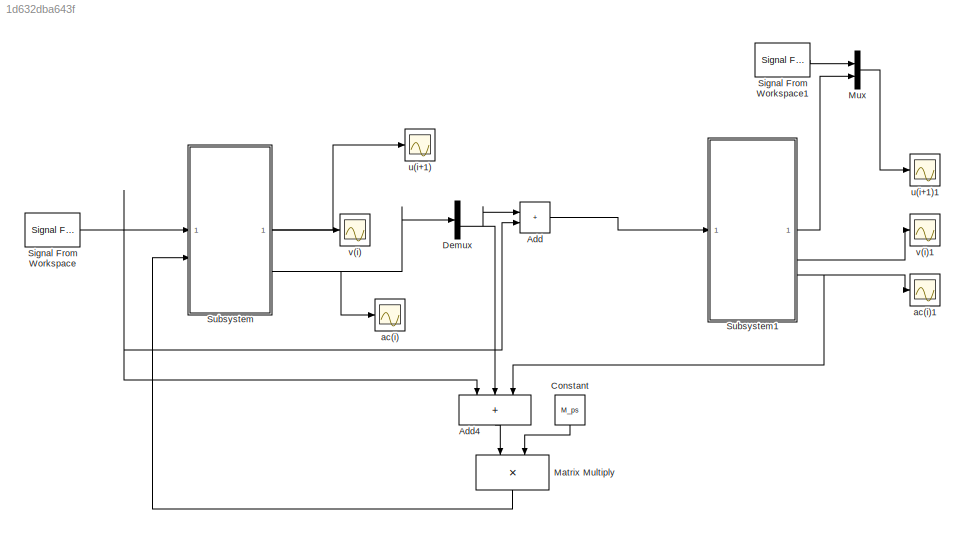
MODEL slx_1d632dba643f
KIND model
CONFIG AbsTol = auto
CONFIG EnableMultiTasking = off
CONFIG FixedStep = 0.001
CONFIG MaxStep = auto
CONFIG MinStep = auto
CONFIG RelTol = 1e-3
CONFIG SampleTimeConstraint = Unconstrained
CONFIG SolverName = FixedStepAuto
CONFIG StartTime = 0.0
CONFIG StopTime = 55.0
BLOCK [Sum] Add
  IconShape = rectangular
BLOCK [Sum] Add4
  IconShape = rectangular
  Inputs = +++
  NameLocation = left
BLOCK [Constant] Constant
  NameLocation = left
  Value = M_ps
BLOCK [Demux] Demux
  Outputs = 2
BLOCK [Product] Matrix Multiply
  Multiplication = Matrix(*)
  NameLocation = left
BLOCK [Mux] Mux
  DisplayOption = bar
  Inputs = 2
BLOCK [Reference] Signal From Workspace  REF=dspsrcs4/Signal From
Workspace
  SourceBlock = dspsrcs4/Signal From\nWorkspace
  SourceType = Signal From Workspace
BLOCK [Reference] Signal From Workspace1  REF=dspsrcs4/Signal From
Workspace
  SourceBlock = dspsrcs4/Signal From\nWorkspace
  SourceType = Signal From Workspace
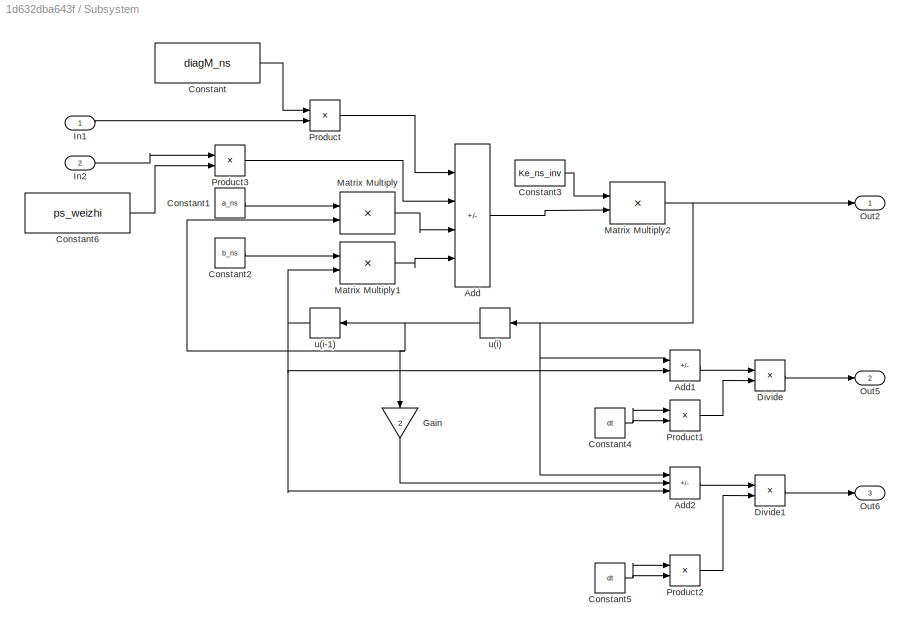
BLOCK [SubSystem] Subsystem
BLOCK [Sum] Subsystem/Add
  IconShape = rectangular
  Inputs = ----
BLOCK [Sum] Subsystem/Add1
  IconShape = rectangular
  Inputs = +-
BLOCK [Sum] Subsystem/Add2
  IconShape = rectangular
  Inputs = +-+
BLOCK [Constant] Subsystem/Constant
  Value = diagM_ns
  VectorParams1D = off
BLOCK [Constant] Subsystem/Constant1
  Value = a_ns
  VectorParams1D = off
BLOCK [Constant] Subsystem/Constant2
  Value = b_ns
  VectorParams1D = off
BLOCK [Constant] Subsystem/Constant3
  Value = Ke_ns_inv
  VectorParams1D = off
BLOCK [Constant] Subsystem/Constant4
  Value = dt
  VectorParams1D = off
BLOCK [Constant] Subsystem/Constant5
  Value = dt
  VectorParams1D = off
BLOCK [Constant] Subsystem/Constant6
  Value = ps_weizhi
  VectorParams1D = off
BLOCK [Product] Subsystem/Divide
  Inputs = */
BLOCK [Product] Subsystem/Divide1
  Inputs = */
BLOCK [Gain] Subsystem/Gain
  Gain = 2
  NameLocation = left
BLOCK [Inport] Subsystem/In1
BLOCK [Inport] Subsystem/In2
  Port = 2
BLOCK [Product] Subsystem/Matrix Multiply
  Multiplication = Matrix(*)
BLOCK [Product] Subsystem/Matrix Multiply1
  Multiplication = Matrix(*)
BLOCK [Product] Subsystem/Matrix Multiply2
  Multiplication = Matrix(*)
BLOCK [Outport] Subsystem/Out2
BLOCK [Outport] Subsystem/Out5
  Port = 2
BLOCK [Outport] Subsystem/Out6
  Port = 3
BLOCK [Product] Subsystem/Product
BLOCK [Product] Subsystem/Product1
BLOCK [Product] Subsystem/Product2
BLOCK [Product] Subsystem/Product3
BLOCK [Memory] Subsystem/u(i)
  NameLocation = top
BLOCK [Memory] Subsystem/u(i-1)
  NameLocation = top
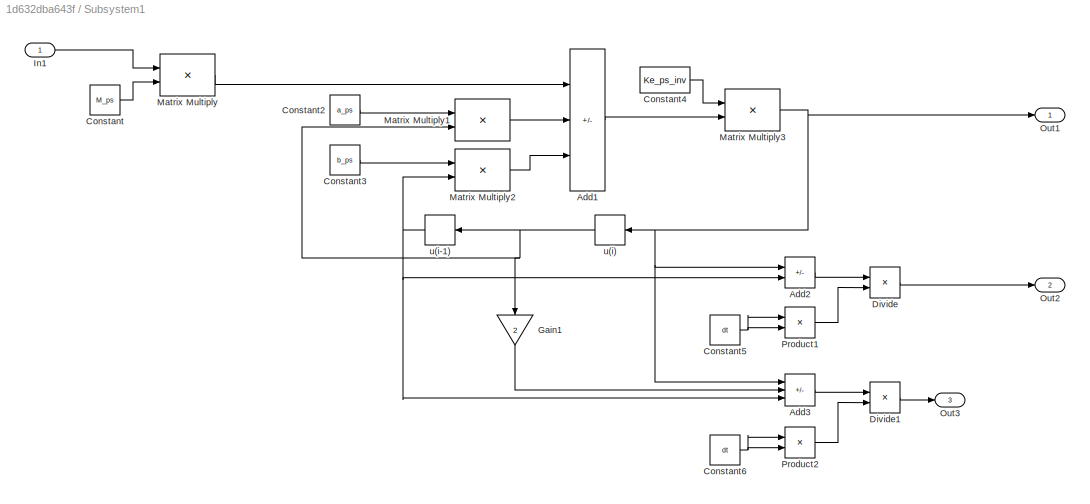
BLOCK [SubSystem] Subsystem1
BLOCK [Sum] Subsystem1/Add1
  IconShape = rectangular
  Inputs = ---
BLOCK [Sum] Subsystem1/Add2
  IconShape = rectangular
  Inputs = +-
BLOCK [Sum] Subsystem1/Add3
  IconShape = rectangular
  Inputs = +-+
BLOCK [Constant] Subsystem1/Constant
  Value = M_ps
BLOCK [Constant] Subsystem1/Constant2
  Value = a_ps
  VectorParams1D = off
BLOCK [Constant] Subsystem1/Constant3
  Value = b_ps
  VectorParams1D = off
BLOCK [Constant] Subsystem1/Constant4
  Value = Ke_ps_inv
  VectorParams1D = off
BLOCK [Constant] Subsystem1/Constant5
  Value = dt
  VectorParams1D = off
BLOCK [Constant] Subsystem1/Constant6
  Value = dt
  VectorParams1D = off
BLOCK [Product] Subsystem1/Divide
  Inputs = */
BLOCK [Product] Subsystem1/Divide1
  Inputs = */
BLOCK [Gain] Subsystem1/Gain1
  Gain = 2
  NameLocation = left
BLOCK [Inport] Subsystem1/In1
BLOCK [Product] Subsystem1/Matrix Multiply
  Multiplication = Matrix(*)
BLOCK [Product] Subsystem1/Matrix Multiply1
  Multiplication = Matrix(*)
BLOCK [Product] Subsystem1/Matrix Multiply2
  Multiplication = Matrix(*)
BLOCK [Product] Subsystem1/Matrix Multiply3
  Multiplication = Matrix(*)
BLOCK [Outport] Subsystem1/Out1
BLOCK [Outport] Subsystem1/Out2
  Port = 2
BLOCK [Outport] Subsystem1/Out3
  Port = 3
BLOCK [Product] Subsystem1/Product1
BLOCK [Product] Subsystem1/Product2
BLOCK [Memory] Subsystem1/u(i)
  NameLocation = top
BLOCK [Memory] Subsystem1/u(i-1)
  NameLocation = top
BLOCK [Scope] ac(i)
  Floating = off
  NumInputPorts = 1
  ScopeSpecificationString = Simulink.scopes.TimeScopeBlockCfg('CurrentConfiguration', extmgr.ConfigurationSet(extmgr.Configuration('Core','General UI',true),extmgr.Configuration('Core','Source UI',true),extmgr.Configuration('Sources','WiredSimulink',true,'DataLoggingVariableName','ScopeData2'),extmgr.Configuration('Visuals','Time Domain',true,'SerializedDisplays',{struct('MinYLimReal','-0.33751','MaxYLimReal','0.85066','YLab...<+1437ch>
BLOCK [Scope] ac(i)1
  Floating = off
  NumInputPorts = 1
  ScopeSpecificationString = Simulink.scopes.TimeScopeBlockCfg('CurrentConfiguration', extmgr.ConfigurationSet(extmgr.Configuration('Core','General UI',true),extmgr.Configuration('Core','Source UI',true),extmgr.Configuration('Sources','WiredSimulink',true,'DataLoggingVariableName','ScopeData3'),extmgr.Configuration('Visuals','Time Domain',true,'SerializedDisplays',{struct('MinYLimReal','-0.109','MaxYLimReal','0.27091','YLabel...<+1397ch>
BLOCK [Scope] u(i+1)
  Floating = off
  NumInputPorts = 1
  ScopeSpecificationString = Simulink.scopes.TimeScopeBlockCfg('CurrentConfiguration', extmgr.ConfigurationSet(extmgr.Configuration('Core','General UI',true),extmgr.Configuration('Core','Source UI',true),extmgr.Configuration('Sources','WiredSimulink',true),extmgr.Configuration('Visuals','Time Domain',true,'SerializedDisplays',{struct('MinYLimReal','-0.0019','MaxYLimReal','0.00141','YLabelReal','','MinYLimMag','0.00000','MaxYL...<+1375ch>
BLOCK [Scope] u(i+1)1
  Floating = off
  NumInputPorts = 1
  ScopeSpecificationString = Simulink.scopes.TimeScopeBlockCfg('CurrentConfiguration', extmgr.ConfigurationSet(extmgr.Configuration('Core','General UI',true),extmgr.Configuration('Core','Source UI',true),extmgr.Configuration('Sources','WiredSimulink',true,'DataLoggingVariableName','ScopeData4'),extmgr.Configuration('Visuals','Time Domain',true,'SerializedDisplays',{struct('MinYLimReal','-0.00071','MaxYLimReal','0.00053','YLab...<+1445ch>
BLOCK [Scope] v(i)
  Floating = off
  NumInputPorts = 1
  ScopeSpecificationString = Simulink.scopes.TimeScopeBlockCfg('CurrentConfiguration', extmgr.ConfigurationSet(extmgr.Configuration('Core','General UI',true),extmgr.Configuration('Core','Source UI',true),extmgr.Configuration('Sources','WiredSimulink',true,'DataLoggingVariableName','ScopeData1'),extmgr.Configuration('Visuals','Time Domain',true,'SerializedDisplays',{struct('MinYLimReal','-35.93196','MaxYLimReal','34.84609','YL...<+1424ch>
BLOCK [Scope] v(i)1
  Floating = off
  NumInputPorts = 1
  ScopeSpecificationString = Simulink.scopes.TimeScopeBlockCfg('CurrentConfiguration', extmgr.ConfigurationSet(extmgr.Configuration('Core','General UI',true),extmgr.Configuration('Core','Source UI',true),extmgr.Configuration('Sources','WiredSimulink',true,'DataLoggingVariableName','ScopeData5'),extmgr.Configuration('Visuals','Time Domain',true,'SerializedDisplays',{struct('MinYLimReal','-16.25869','MaxYLimReal','22.29084','YL...<+1414ch>
LINE Add4:1 -> Matrix Multiply:1
LINE Add:1 -> Subsystem1:1
LINE Constant:1 -> Matrix Multiply:2
NET Demux:2 -> Add4:2, Add:1
LINE Matrix Multiply:1 -> Subsystem:2
LINE Mux:1 -> u(i+1)1:1
LINE Signal From Workspace1:1 -> Mux:1
NET Signal From Workspace:1 -> Add4:1, Add:2, Subsystem:1
LINE Subsystem/Add1:1 -> Subsystem/Divide:1
LINE Subsystem/Add2:1 -> Subsystem/Divide1:1
LINE Subsystem/Add:1 -> Subsystem/Matrix Multiply2:2
LINE Subsystem/Constant1:1 -> Subsystem/Matrix Multiply:1
LINE Subsystem/Constant2:1 -> Subsystem/Matrix Multiply1:1
LINE Subsystem/Constant3:1 -> Subsystem/Matrix Multiply2:1
NET Subsystem/Constant4:1 -> Subsystem/Product1:1, Subsystem/Product1:2
NET Subsystem/Constant5:1 -> Subsystem/Product2:1, Subsystem/Product2:2
LINE Subsystem/Constant6:1 -> Subsystem/Product3:2
LINE Subsystem/Constant:1 -> Subsystem/Product:1
LINE Subsystem/Divide1:1 -> Subsystem/Out6:1
LINE Subsystem/Divide:1 -> Subsystem/Out5:1
LINE Subsystem/Gain:1 -> Subsystem/Add2:2
LINE Subsystem/In1:1 -> Subsystem/Product:2
LINE Subsystem/In2:1 -> Subsystem/Product3:1
LINE Subsystem/Matrix Multiply1:1 -> Subsystem/Add:4
NET Subsystem/Matrix Multiply2:1 -> Subsystem/Add1:1, Subsystem/Add2:1, Subsystem/Out2:1, Subsystem/u(i):1
LINE Subsystem/Matrix Multiply:1 -> Subsystem/Add:3
LINE Subsystem/Product1:1 -> Subsystem/Divide:2
LINE Subsystem/Product2:1 -> Subsystem/Divide1:2
LINE Subsystem/Product3:1 -> Subsystem/Add:2
LINE Subsystem/Product:1 -> Subsystem/Add:1
NET Subsystem/u(i):1 -> Subsystem/Gain:1, Subsystem/Matrix Multiply:2, Subsystem/u(i-1):1
NET Subsystem/u(i-1):1 -> Subsystem/Add1:2, Subsystem/Add2:3, Subsystem/Matrix Multiply1:2
LINE Subsystem1/Add1:1 -> Subsystem1/Matrix Multiply3:2
LINE Subsystem1/Add2:1 -> Subsystem1/Divide:1
LINE Subsystem1/Add3:1 -> Subsystem1/Divide1:1
LINE Subsystem1/Constant2:1 -> Subsystem1/Matrix Multiply1:1
LINE Subsystem1/Constant3:1 -> Subsystem1/Matrix Multiply2:1
LINE Subsystem1/Constant4:1 -> Subsystem1/Matrix Multiply3:1
NET Subsystem1/Constant5:1 -> Subsystem1/Product1:1, Subsystem1/Product1:2
NET Subsystem1/Constant6:1 -> Subsystem1/Product2:1, Subsystem1/Product2:2
LINE Subsystem1/Constant:1 -> Subsystem1/Matrix Multiply:2
LINE Subsystem1/Divide1:1 -> Subsystem1/Out3:1
LINE Subsystem1/Divide:1 -> Subsystem1/Out2:1
LINE Subsystem1/Gain1:1 -> Subsystem1/Add3:2
LINE Subsystem1/In1:1 -> Subsystem1/Matrix Multiply:1
LINE Subsystem1/Matrix Multiply1:1 -> Subsystem1/Add1:2
LINE Subsystem1/Matrix Multiply2:1 -> Subsystem1/Add1:3
NET Subsystem1/Matrix Multiply3:1 -> Subsystem1/Add2:1, Subsystem1/Add3:1, Subsystem1/Out1:1, Subsystem1/u(i):1
LINE Subsystem1/Matrix Multiply:1 -> Subsystem1/Add1:1
LINE Subsystem1/Product1:1 -> Subsystem1/Divide:2
LINE Subsystem1/Product2:1 -> Subsystem1/Divide1:2
NET Subsystem1/u(i):1 -> Subsystem1/Gain1:1, Subsystem1/Matrix Multiply1:2, Subsystem1/u(i-1):1
NET Subsystem1/u(i-1):1 -> Subsystem1/Add2:2, Subsystem1/Add3:3, Subsystem1/Matrix Multiply2:2
LINE Subsystem1:1 -> Mux:2
LINE Subsystem1:2 -> v(i)1:1
NET Subsystem1:3 -> Add4:3, ac(i)1:1
LINE Subsystem:1 -> u(i+1):1
LINE Subsystem:2 -> v(i):1
NET Subsystem:3 -> Demux:1, ac(i):1
note: NET lines group one-source signal fan-out (src -> all destinations, sorted); 1:1 wires keep LINE
